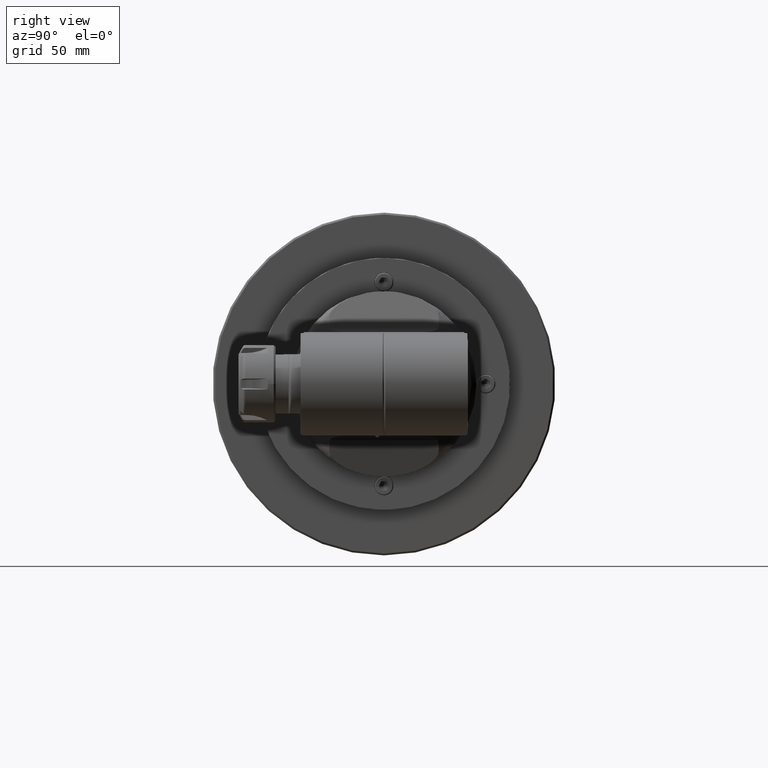
[diagram: clean part render]
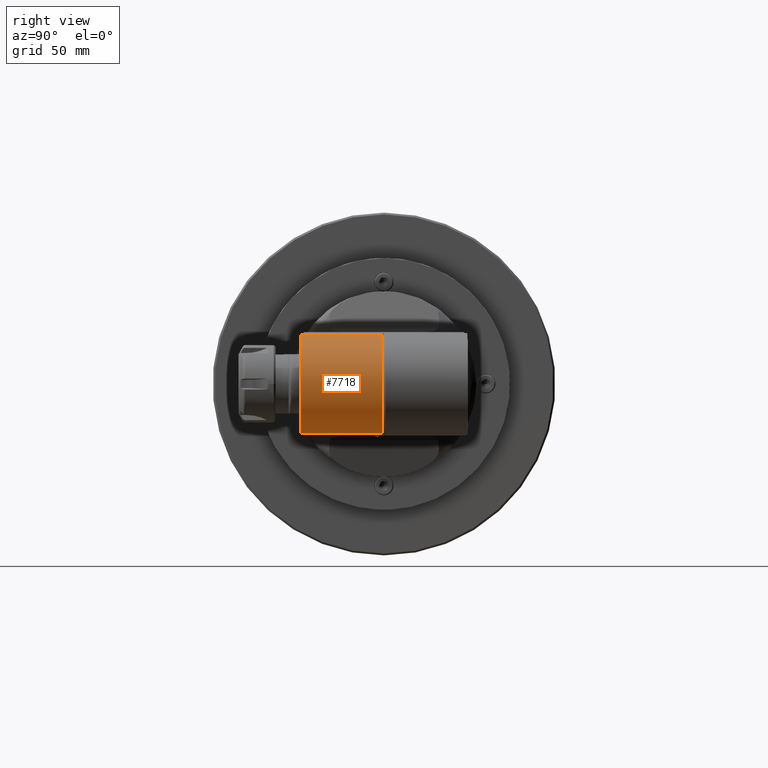
[diagram: same view with one face highlighted and labeled with its STEP entity id]
A machine part, right view. The second image highlights one B-rep face of the part: STEP entity #7718.
In plain terms, the highlighted cylindrical surface (partial cylindrical patch) has radius 27 mm, axis along (-0, 1, 0).
Its self-contained STEP definition (entity closure, byte-faithful):
#484=CYLINDRICAL_SURFACE('',#8345,27.);
#651=CIRCLE('',#8343,27.);
#653=CIRCLE('',#8346,27.);
#1030=FACE_OUTER_BOUND('',#1519,.T.);
#1519=EDGE_LOOP('',(#5478,#5479,#5480,#5481));
#2079=LINE('',#12356,#2645);
#2080=LINE('',#12359,#2646);
#2645=VECTOR('',#9468,44.33431457505);
#2646=VECTOR('',#9471,44.33431457505);
#3297=VERTEX_POINT('',#12320);
#3298=VERTEX_POINT('',#12321);
#3306=VERTEX_POINT('',#12355);
#3307=VERTEX_POINT('',#12357);
#4128=EDGE_CURVE('',#3297,#3298,#651,.T.);
#4138=EDGE_CURVE('',#3297,#3306,#2079,.T.);
#4139=EDGE_CURVE('',#3307,#3306,#653,.T.);
#4140=EDGE_CURVE('',#3307,#3298,#2080,.T.);
#5478=ORIENTED_EDGE('',*,*,#4128,.F.);
#5479=ORIENTED_EDGE('',*,*,#4138,.T.);
#5480=ORIENTED_EDGE('',*,*,#4139,.F.);
#5481=ORIENTED_EDGE('',*,*,#4140,.T.);
#7718=ADVANCED_FACE('',(#1030),#484,.T.);
#8343=AXIS2_PLACEMENT_3D('',#12322,#9460,#9461);
#8345=AXIS2_PLACEMENT_3D('',#12354,#9466,#9467);
#8346=AXIS2_PLACEMENT_3D('',#12358,#9469,#9470);
#9460=DIRECTION('center_axis',(0.,-1.,0.));
#9461=DIRECTION('ref_axis',(0.0871557427475262,0.,-0.996194698091757));
#9466=DIRECTION('center_axis',(0.,1.,0.));
#9467=DIRECTION('ref_axis',(1.,0.,1.22464679914735E-16));
#9468=DIRECTION('',(2.692523404317E-14,1.,0.));
#9469=DIRECTION('center_axis',(0.,1.,0.));
#9470=DIRECTION('ref_axis',(1.,0.,0.));
#9471=DIRECTION('',(2.75663110442E-14,-1.,0.));
#12320=CARTESIAN_POINT('',(90.353205054188,-45.,-26.89725684848));
#12321=CARTESIAN_POINT('',(90.353205054188,-45.,26.89725684848));
#12322=CARTESIAN_POINT('Origin',(87.999999999998,-45.,0.));
#12354=CARTESIAN_POINT('Origin',(87.999999999998,-54.0000024,0.));
#12355=CARTESIAN_POINT('',(90.353205054188,-0.6656854249492,-26.89725684848));
#12356=CARTESIAN_POINT('',(90.353205054188,-45.,-26.89725684848));
#12357=CARTESIAN_POINT('',(90.353205054188,-0.6656854249492,26.89725684848));
#12358=CARTESIAN_POINT('Origin',(87.999999999998,-0.6656854249492,0.));
#12359=CARTESIAN_POINT('',(90.353205054188,-0.6656854249492,26.89725684848));